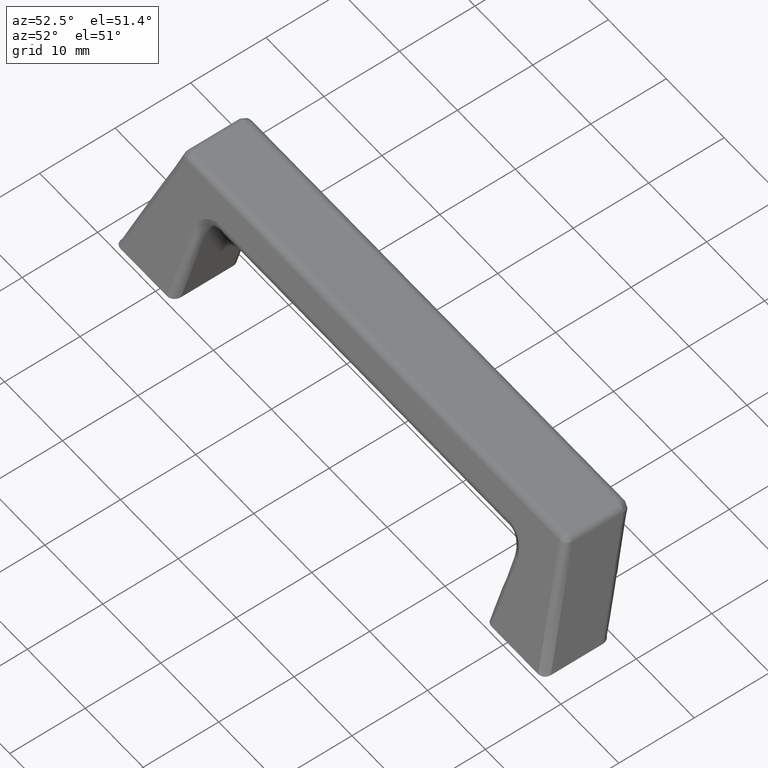
[diagram: clean part render]
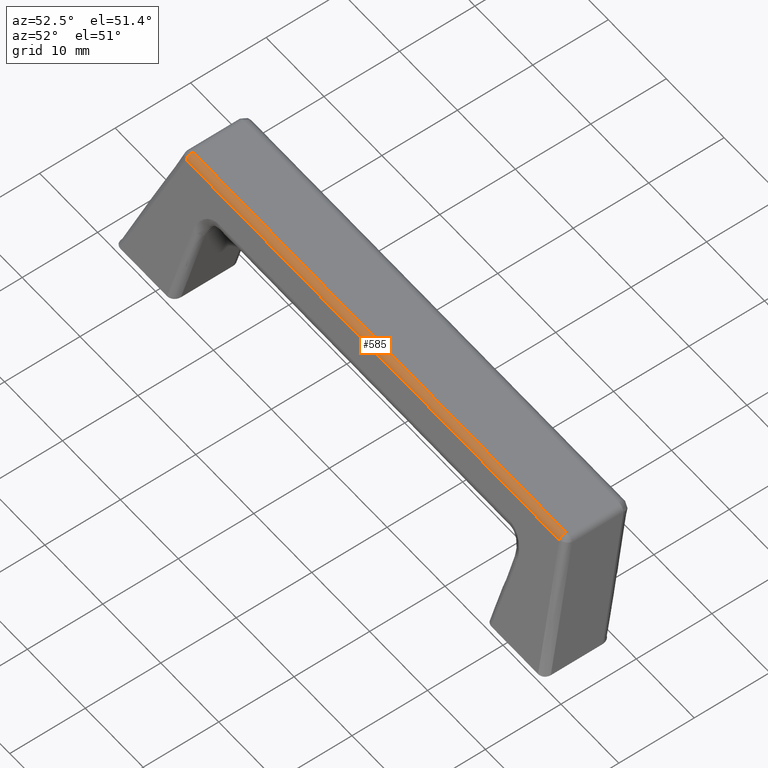
[diagram: same view with one face highlighted and labeled with its STEP entity id]
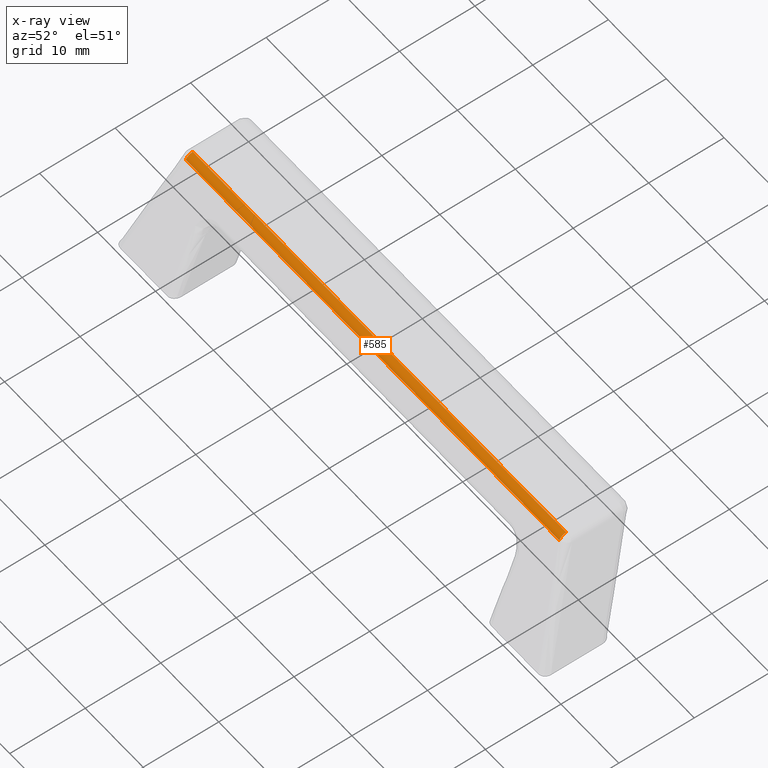
[diagram: x-ray of the same camera — body ghosted, the highlighted face saturated]
A machine part, auxiliary view. The second image highlights one B-rep face of the part: STEP entity #585.
The next image is the same camera in x-ray: the body ghosted, the highlighted face saturated — about 0% of this face is hidden behind the body in this view.
In plain terms, the highlighted face is a freeform B-spline surface patch.
Its self-contained STEP definition (entity closure, byte-faithful):
#455=CARTESIAN_POINT('',(-32.241546304475548,5.748147348757859,14.371368397529700));
#456=VERTEX_POINT('',#455);
#509=CARTESIAN_POINT('',(-32.241546304475548,6.676632950862850,15.0));
#510=VERTEX_POINT('',#509);
#511=CARTESIAN_POINT('',(-32.241546304475548,5.748147348757862,14.371368397529700));
#512=CARTESIAN_POINT('',(-32.241546304475548,5.999582492519554,15.000000000000007));
#513=CARTESIAN_POINT('',(-32.241546304475548,6.676632950862830,15.0));
#521=(BOUNDED_CURVE()B_SPLINE_CURVE(2,(#511,#512,#513),.UNSPECIFIED.,.F.,.U.)CURVE()GEOMETRIC_REPRESENTATION_ITEM()QUASI_UNIFORM_CURVE()RATIONAL_B_SPLINE_CURVE((1.0,0.828060504289904,1.0))REPRESENTATION_ITEM(''));
#522=EDGE_CURVE('',#456,#510,#521,.T.);
#541=CARTESIAN_POINT('',(-33.853623619699327,5.733991459770671,14.333806859233770));
#542=CARTESIAN_POINT('',(33.893925552579923,5.733991459770671,14.333806859233770));
#543=CARTESIAN_POINT('',(-33.853623619699327,5.984167390618937,15.040281894023376));
#544=CARTESIAN_POINT('',(33.893925552579908,5.984167390618937,15.040281894023376));
#545=CARTESIAN_POINT('',(-33.853623619699320,6.732461622507971,14.998440363478128));
#546=CARTESIAN_POINT('',(33.893925552579908,6.732461622507971,14.998440363478128));
#554=(BOUNDED_SURFACE()B_SPLINE_SURFACE(1,2,((#541,#543,#545),(#542,#544,#546)),.UNSPECIFIED.,.F.,.F.,.U.)B_SPLINE_SURFACE_WITH_KNOTS((2,2),(3,3),(0.0,67.747549172279236),(0.0,0.981440938557684),.UNSPECIFIED.)GEOMETRIC_REPRESENTATION_ITEM()RATIONAL_B_SPLINE_SURFACE(((1.0,0.797188508345619,0.992472018130357),(1.0,0.797188508345619,0.992472018130357)))REPRESENTATION_ITEM('')SURFACE());
#555=CARTESIAN_POINT('',(32.241546304475548,5.748147348757859,14.371368397529700));
#556=VERTEX_POINT('',#555);
#557=CARTESIAN_POINT('',(32.241546304475548,6.676632950862850,15.0));
#558=VERTEX_POINT('',#557);
#559=CARTESIAN_POINT('',(32.241546304475548,5.748147348757871,14.371368397529700));
#560=CARTESIAN_POINT('',(32.241546304475548,5.999582492519561,15.000000000000004));
#561=CARTESIAN_POINT('',(32.241546304475548,6.676632950862840,15.0));
#569=(BOUNDED_CURVE()B_SPLINE_CURVE(2,(#559,#560,#561),.UNSPECIFIED.,.F.,.U.)CURVE()GEOMETRIC_REPRESENTATION_ITEM()QUASI_UNIFORM_CURVE()RATIONAL_B_SPLINE_CURVE((1.0,0.828060504289902,1.0))REPRESENTATION_ITEM(''));
#570=EDGE_CURVE('',#556,#558,#569,.T.);
#571=ORIENTED_EDGE('',*,*,#570,.T.);
#572=CARTESIAN_POINT('',(-32.241546304475548,6.676632950862850,15.0));
#573=CARTESIAN_POINT('',(32.241546304475548,6.676632950862850,15.0));
#574=QUASI_UNIFORM_CURVE('',1,(#572,#573),.UNSPECIFIED.,.F.,.U.);
#575=EDGE_CURVE('',#510,#558,#574,.T.);
#576=ORIENTED_EDGE('',*,*,#575,.F.);
#577=ORIENTED_EDGE('',*,*,#522,.F.);
#578=CARTESIAN_POINT('',(32.241546304475548,5.748147348757859,14.371368397529700));
#579=CARTESIAN_POINT('',(-32.241546304475548,5.748147348757859,14.371368397529700));
#580=QUASI_UNIFORM_CURVE('',1,(#578,#579),.UNSPECIFIED.,.F.,.U.);
#581=EDGE_CURVE('',#556,#456,#580,.T.);
#582=ORIENTED_EDGE('',*,*,#581,.F.);
#583=EDGE_LOOP('',(#571,#576,#577,#582));
#584=FACE_OUTER_BOUND('',#583,.T.);
#585=ADVANCED_FACE('',(#584),#554,.T.);